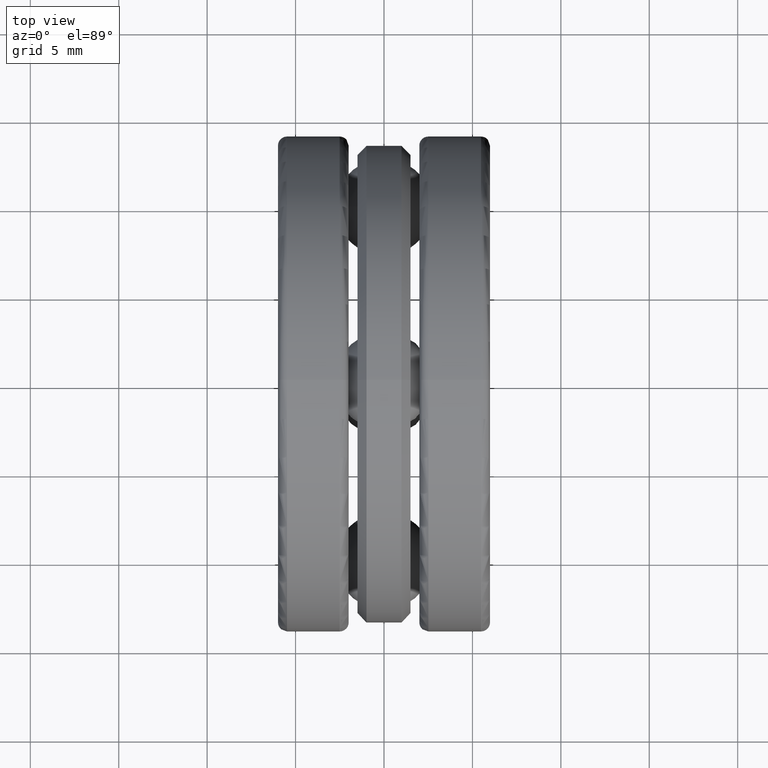
[diagram: clean part render]
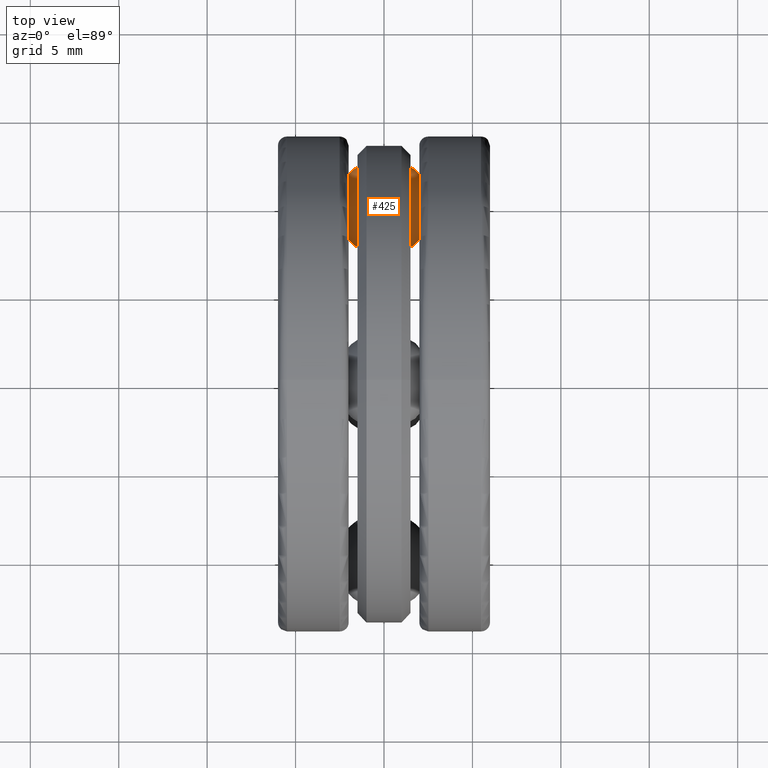
[diagram: same view with one face highlighted and labeled with its STEP entity id]
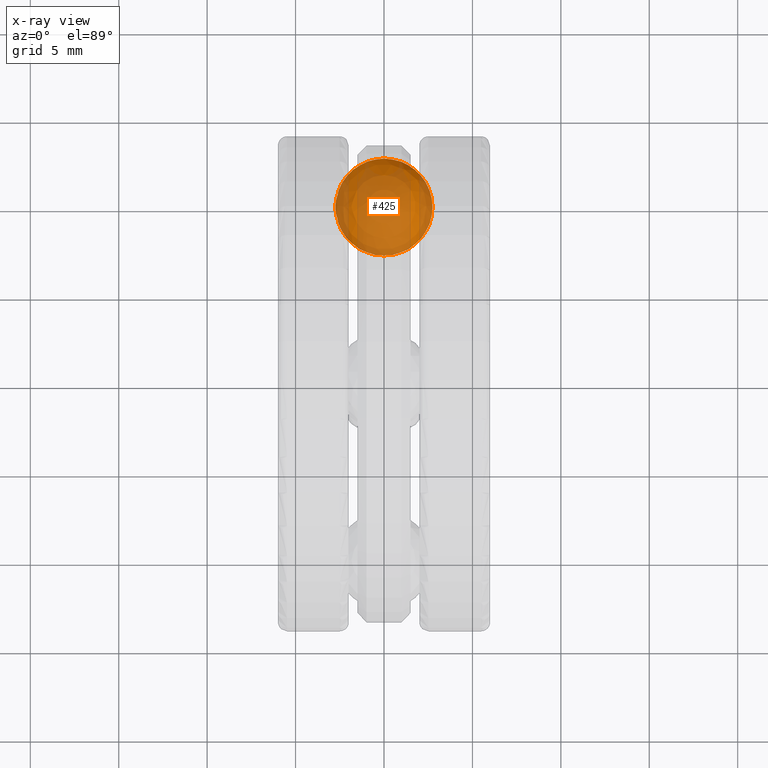
[diagram: x-ray of the same camera — body ghosted, the highlighted face saturated]
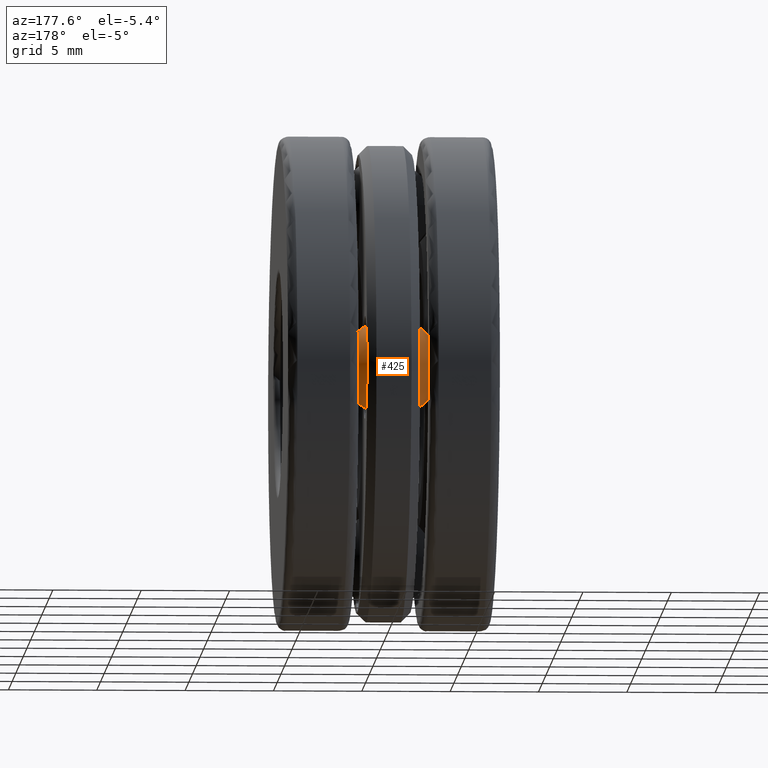
[diagram: same view with one face highlighted and labeled with its STEP entity id]
A machine part, top view. The second image highlights one B-rep face of the part: STEP entity #425.
The next image is the same camera in x-ray: the body ghosted, the highlighted face saturated — about 74% of this face is hidden behind the body in this view.
A second angle (auxiliary view) of the same face is appended — the face is thin or edge-on in the first view.
In plain terms, the highlighted spherical surface has radius 2.7813 mm.
Its self-contained STEP definition (entity closure, byte-faithful):
#187 = AXIS2_PLACEMENT_3D ( 'NONE', #206, #524, #652 ) ;
#206 = CARTESIAN_POINT ( 'NONE',  ( 2.410167579495174300E-017, 0.3936102362204725300, 0.0000000000000000000 ) ) ;
#364 = SPHERICAL_SURFACE ( 'NONE', #187, 0.1094999999999999600 ) ;
#425 = ADVANCED_FACE ( 'NONE', ( ), #364, .T. ) ;
#524 = DIRECTION ( 'NONE',  ( 0.0000000000000000000, 0.0000000000000000000, 1.000000000000000000 ) ) ;
#652 = DIRECTION ( 'NONE',  ( -1.000000000000000000, 0.0000000000000000000, 0.0000000000000000000 ) ) ;